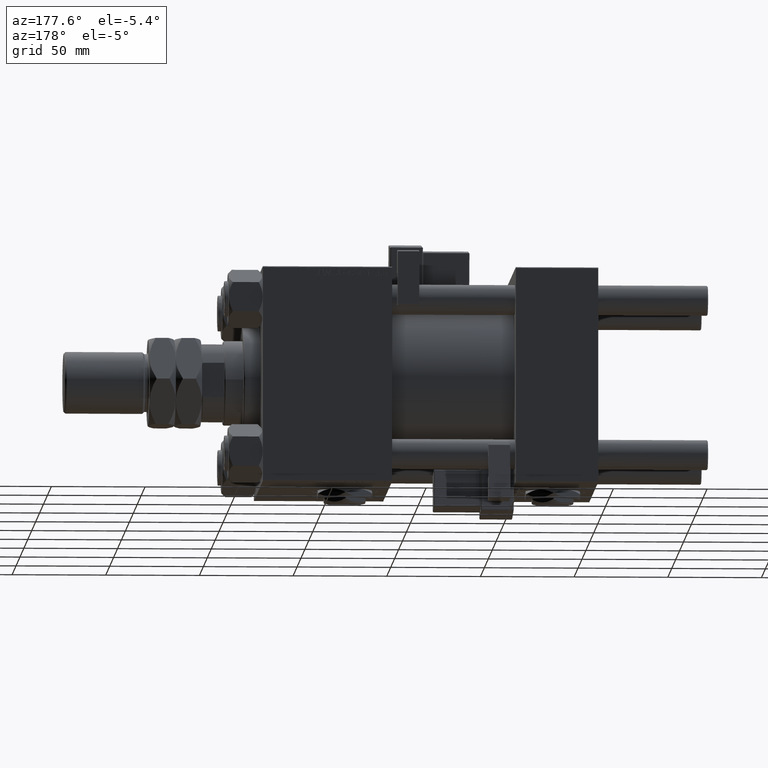
[diagram: clean part render]
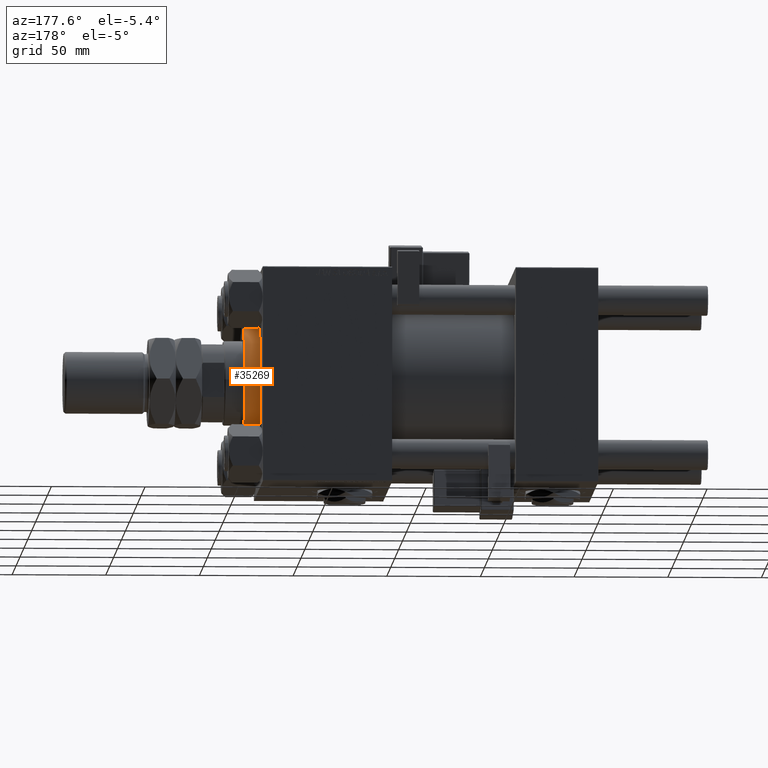
[diagram: same view with one face highlighted and labeled with its STEP entity id]
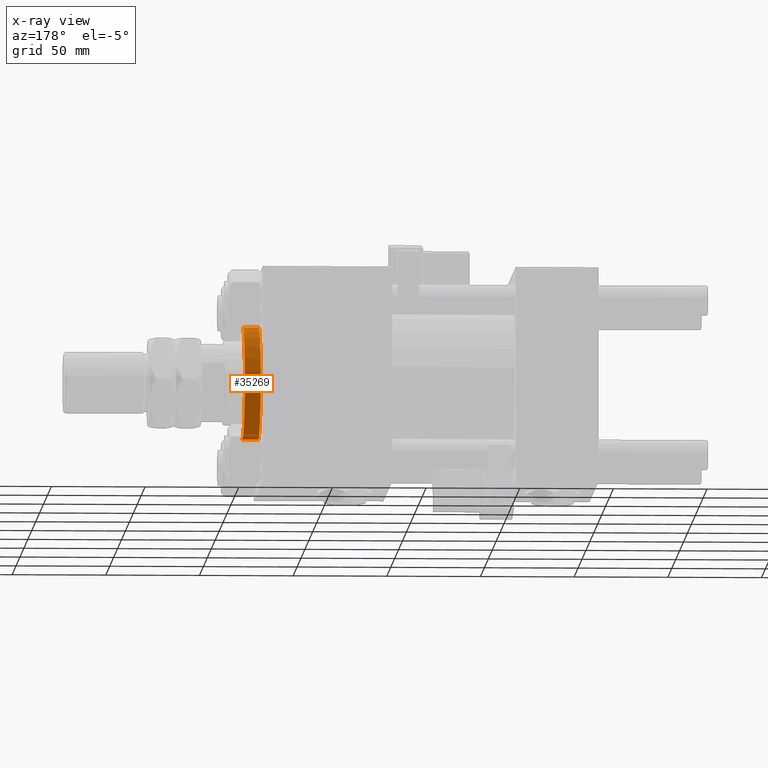
[diagram: x-ray of the same camera — body ghosted, the highlighted face saturated]
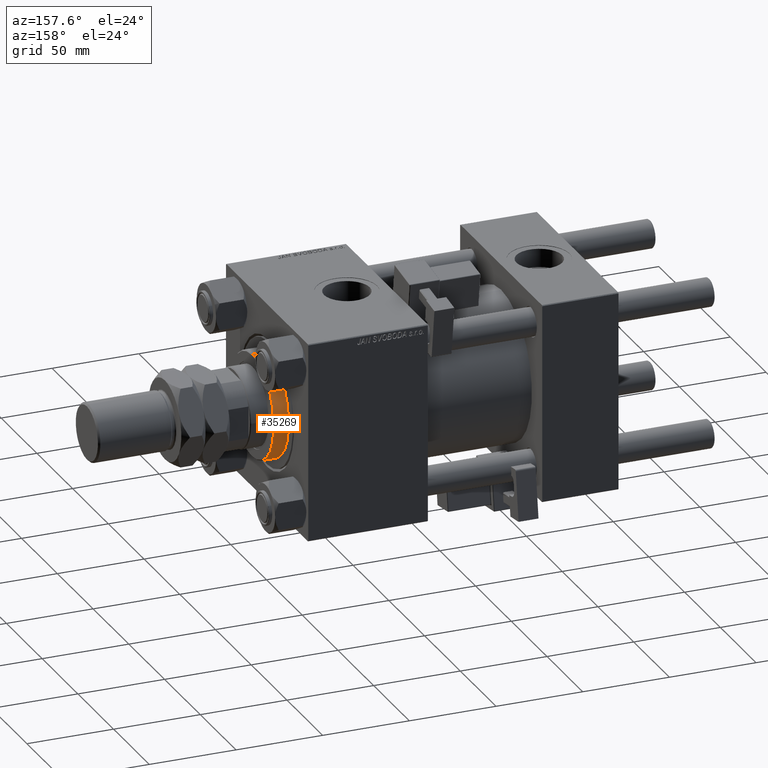
[diagram: same view with one face highlighted and labeled with its STEP entity id]
A machine part, auxiliary view. The second image highlights one B-rep face of the part: STEP entity #35269.
The next image is the same camera in x-ray: the body ghosted, the highlighted face saturated — about 5% of this face is hidden behind the body in this view.
A second angle (auxiliary view) of the same face is appended — the face is thin or edge-on in the first view.
In plain terms, the highlighted cylindrical surface (partial cylindrical patch) has radius 30 mm, axis along (-1, -0, 0).
Its self-contained STEP definition (entity closure, byte-faithful):
#286 = CARTESIAN_POINT ( 'NONE',  ( -30.00000000000000000, 0.000000000000000000, 37.20000000000000284 ) ) ;
#449 = DIRECTION ( 'NONE',  ( -1.000000000000000000, 0.000000000000000000, 0.000000000000000000 ) ) ;
#1007 = CYLINDRICAL_SURFACE ( 'NONE', #56080, 30.00000000000000000 ) ;
#1623 = CIRCLE ( 'NONE', #8873, 30.00000000000000000 ) ;
#3949 = CARTESIAN_POINT ( 'NONE',  ( 0.000000000000000000, 0.000000000000000000, 37.20000000000000284 ) ) ;
#4560 = LINE ( 'NONE', #13969, #31683 ) ;
#4970 = AXIS2_PLACEMENT_3D ( 'NONE', #3949, #5062, #47670 ) ;
#5062 = DIRECTION ( 'NONE',  ( 0.000000000000000000, 0.000000000000000000, -1.000000000000000000 ) ) ;
#5072 = EDGE_LOOP ( 'NONE', ( #18635, #41627, #12982, #39016 ) ) ;
#5625 = CARTESIAN_POINT ( 'NONE',  ( 30.00000000000000000, 3.673940397442059178E-15, 28.69999999999999929 ) ) ;
#8873 = AXIS2_PLACEMENT_3D ( 'NONE', #48419, #29498, #40178 ) ;
#12982 = ORIENTED_EDGE ( 'NONE', *, *, #16076, .T. ) ;
#13969 = CARTESIAN_POINT ( 'NONE',  ( 30.00000000000000000, 3.673940397442059178E-15, 37.69999999999999574 ) ) ;
#16076 = EDGE_CURVE ( 'NONE', #19584, #21705, #1623, .T. ) ;
#17437 = DIRECTION ( 'NONE',  ( -0.000000000000000000, -0.000000000000000000, -1.000000000000000000 ) ) ;
#17636 = EDGE_CURVE ( 'NONE', #28544, #19584, #4560, .T. ) ;
#18162 = CARTESIAN_POINT ( 'NONE',  ( 30.00000000000000000, 3.673940397442059178E-15, 37.20000000000000284 ) ) ;
#18222 = DIRECTION ( 'NONE',  ( -0.000000000000000000, -0.000000000000000000, -1.000000000000000000 ) ) ;
#18550 = CARTESIAN_POINT ( 'NONE',  ( -30.00000000000000000, 0.000000000000000000, 37.69999999999999574 ) ) ;
#18635 = ORIENTED_EDGE ( 'NONE', *, *, #28550, .T. ) ;
#19584 = VERTEX_POINT ( 'NONE', #5625 ) ;
#21705 = VERTEX_POINT ( 'NONE', #46579 ) ;
#22045 = FACE_OUTER_BOUND ( 'NONE', #5072, .T. ) ;
#26763 = CIRCLE ( 'NONE', #4970, 30.00000000000000000 ) ;
#28544 = VERTEX_POINT ( 'NONE', #18162 ) ;
#28550 = EDGE_CURVE ( 'NONE', #46551, #28544, #26763, .T. ) ;
#29498 = DIRECTION ( 'NONE',  ( 0.000000000000000000, 0.000000000000000000, 1.000000000000000000 ) ) ;
#30555 = DIRECTION ( 'NONE',  ( -0.000000000000000000, -0.000000000000000000, -1.000000000000000000 ) ) ;
#31683 = VECTOR ( 'NONE', #18222, 1000.000000000000000 ) ;
#35269 = ADVANCED_FACE ( 'NONE', ( #22045 ), #1007, .T. ) ;
#35317 = LINE ( 'NONE', #18550, #54233 ) ;
#35448 = EDGE_CURVE ( 'NONE', #46551, #21705, #35317, .T. ) ;
#39016 = ORIENTED_EDGE ( 'NONE', *, *, #35448, .F. ) ;
#40178 = DIRECTION ( 'NONE',  ( 1.000000000000000000, 0.000000000000000000, 0.000000000000000000 ) ) ;
#41627 = ORIENTED_EDGE ( 'NONE', *, *, #17636, .T. ) ;
#46551 = VERTEX_POINT ( 'NONE', #286 ) ;
#46579 = CARTESIAN_POINT ( 'NONE',  ( -30.00000000000000000, 0.000000000000000000, 28.69999999999999929 ) ) ;
#47670 = DIRECTION ( 'NONE',  ( 1.000000000000000000, 0.000000000000000000, 0.000000000000000000 ) ) ;
#48419 = CARTESIAN_POINT ( 'NONE',  ( 0.000000000000000000, 0.000000000000000000, 28.69999999999999929 ) ) ;
#52122 = CARTESIAN_POINT ( 'NONE',  ( 0.000000000000000000, 0.000000000000000000, 37.69999999999999574 ) ) ;
#54233 = VECTOR ( 'NONE', #17437, 1000.000000000000000 ) ;
#56080 = AXIS2_PLACEMENT_3D ( 'NONE', #52122, #30555, #449 ) ;